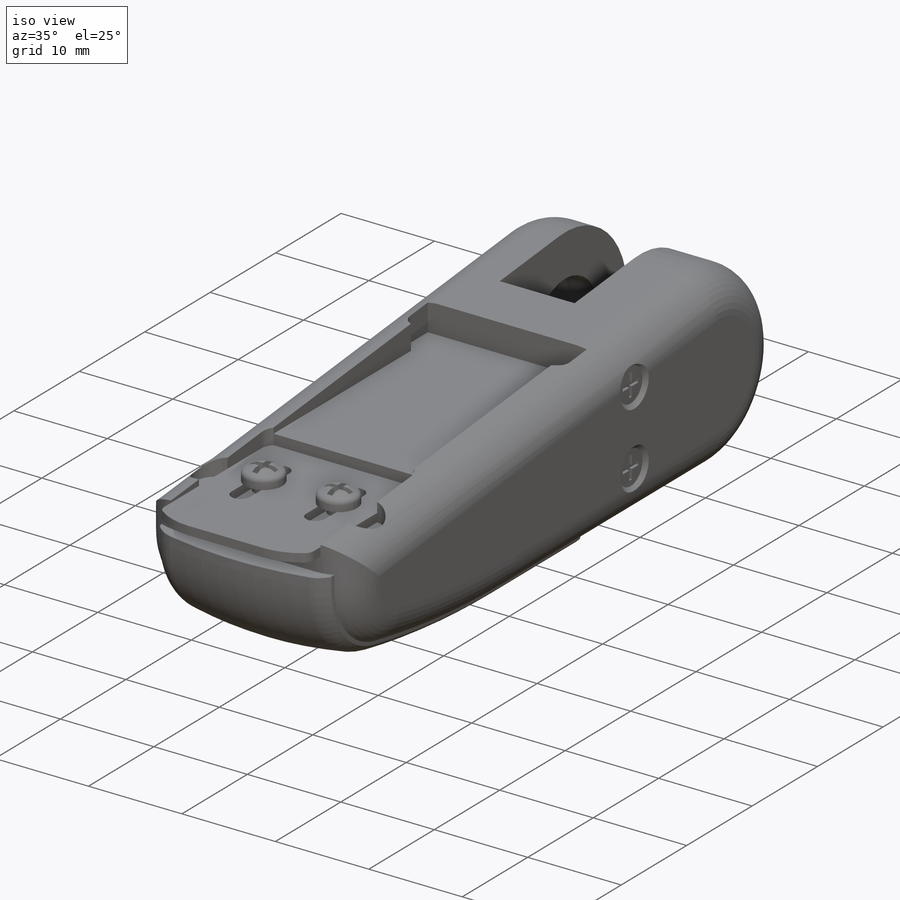
[diagram: iso view]
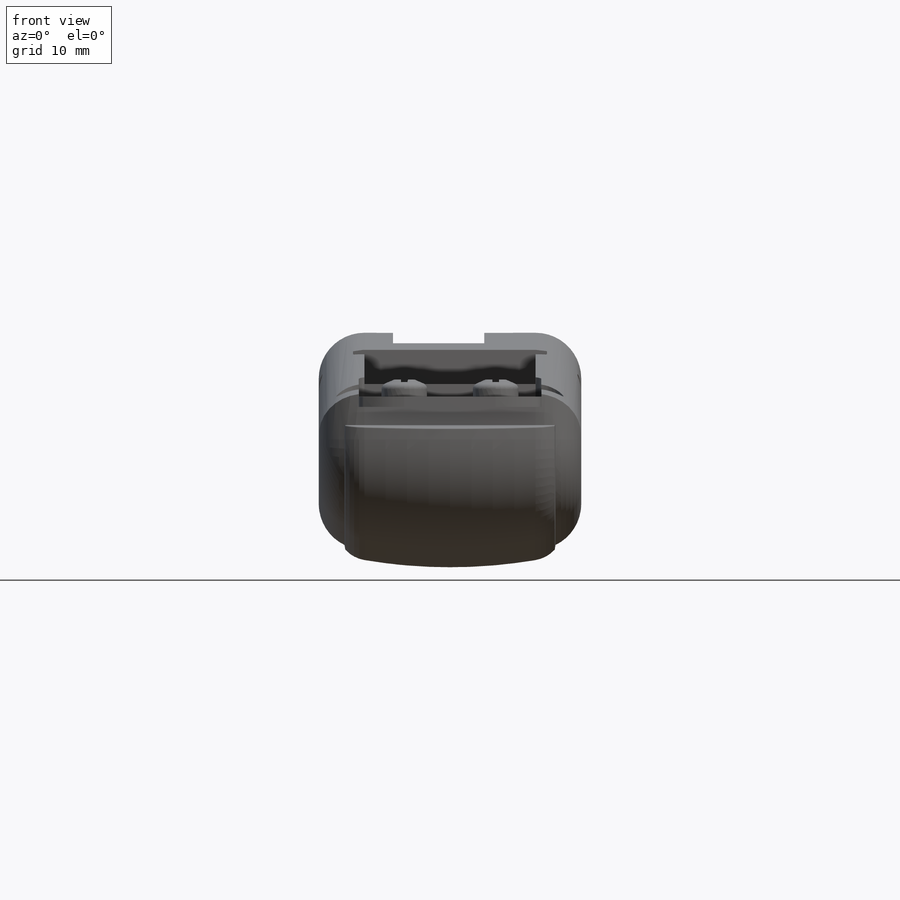
[diagram: front view]
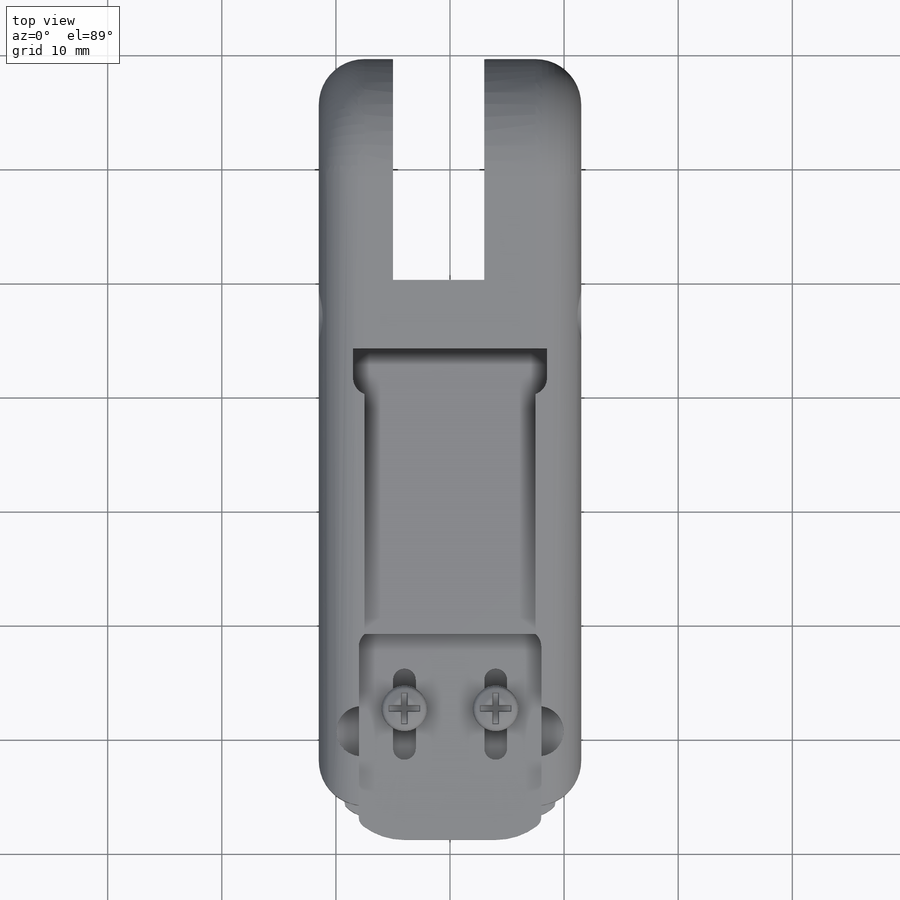
[diagram: top view]
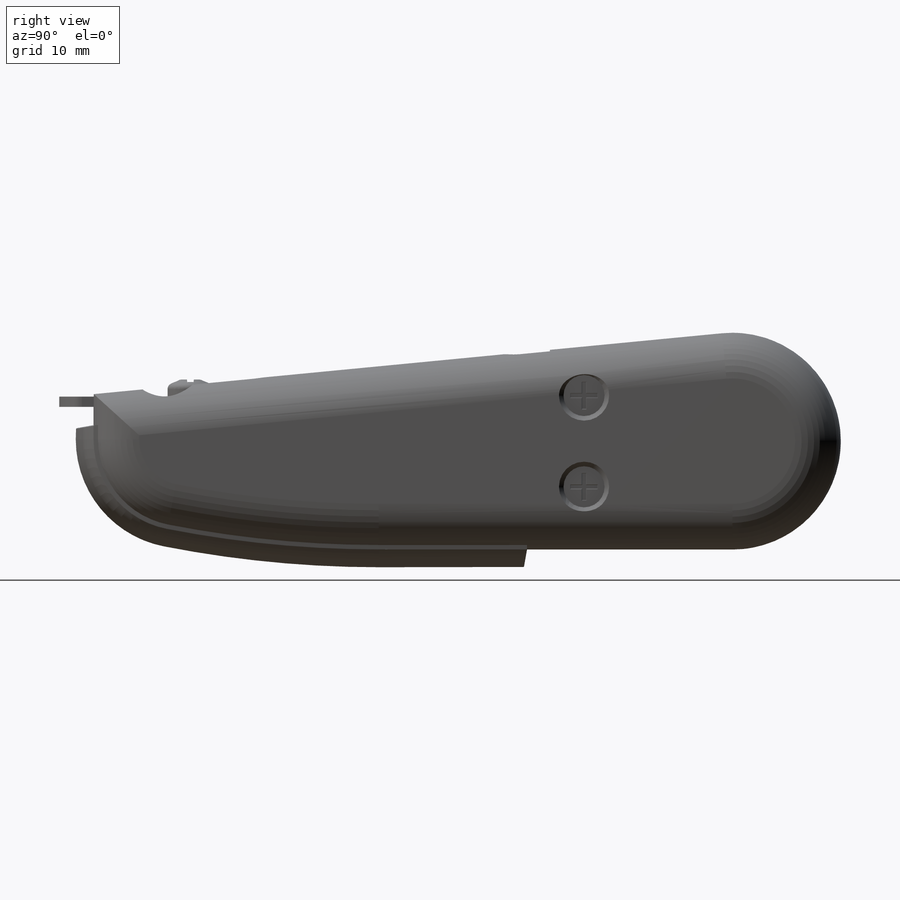
[diagram: right view]
SOLIDWORKS PART (.sldprt)
format: sldprt  version: not decoded by parser v0  size: 1,094,656 bytes
history: native  units: mm
features: sketch x13, cut_extrude x6, extrude x5, fillet x3, material x1, sweep x1, chamfer x1, mirror x1 (+11 scaffold rows collapsed)
feature tree (42):
  scaffold x11  (default folders/planes/origin — collapsed)
  material  "Material <not specified>"
  sketch  "Sketch1"  dims[c1.D1=9.5mm c1.D3=8.0mm c1.D6=~30.426217mm c1.D2=13.5mm c1.D4=56.0mm c2.D2=~37.618982mm c3.D2=5.5deg c3.D5=4.0mm c3.D6=25.0mm]
  extrude  "Boss-Extrude1"  Depth=23mm
  fillet  "Fillet1"  Radius=4mm
  sketch  "Sketch2"  dims[D1=10.0mm]
  cut_extrude  "Cut-Extrude1"  Depth=8mm
  sketch  "Sketch3"  dims[D1=10.0mm]
  cut_extrude  "Cut-Extrude2"  Depth=5mm
  sketch  "Sketch4"  dims[c1.D2=2.75mm c1.D3=~1.532216mm c2.D3=10.0deg c2.D4=~0.494334mm c3.D4=10.0deg c3.D5=18.0mm c3.D1=2.0mm]
  extrude  "Boss-Extrude2"  Depth=18.5mm
  sketch  "Sketch5"
  sketch  "Sketch6"  dims[c1.D3=~0.677177mm c1.D4=45.0mm c1.D1=~0.820827mm c2.D1=10.0deg c2.D2=0.5mm c2.D3=1.75mm c3.D2=1.55mm c3.D5=3.0mm]
  sweep  "Cut-Sweep1"
  fillet  "Fillet2"  Radius=0.1mm
  sketch  "Sketch7"  dims[c1.D1=1.5mm c1.D3=1.5mm c1.D7=2.2mm c1.D11=1.5mm c1.D2=1.0mm c2.D3=6.0mm c2.D4=17.0mm c2.D5=4.0mm c2.D6=16.0mm c2.D8=6.5mm c2.D9=15.5mm c2.D10=21.0mm]
  cut_extrude  "Cut-Extrude3"  Depth=3mm
  sketch  "Sketch8"  dims[D2=6.0mm D4=1.0mm D7=1.0mm D10=2.1mm D1=8.0mm D3=8.0mm D5=3.0mm D6=4.0mm D8=6.0mm D9=8.0mm D11=2.0mm]
  extrude  "Boss-Extrude3"  Depth=0.9mm
  sketch  "Sketch9"
  extrude  "Boss-Extrude4"  Depth=2mm
  sketch  "Sketch10"  dims[D1=4.0mm]
  extrude  "Boss-Extrude5"  Depth=1.5mm
  chamfer  "Chamfer1"  Distance=0.5mm Angle=65deg
  fillet  "Fillet3"  Radius=0.5mm
  sketch  "Sketch11"  dims[D1=0.6mm D2=0.3mm D3=1.4mm D4=4.0]
  cut_extrude  "Cut-Extrude4"  Depth=1mm
  sketch  "Sketch12"  dims[D3=4.4mm D1=8.0mm D2=13.0mm]
  cut_extrude  "Cut-Extrude5"  Depth=0.4mm
  sketch  "Sketch13"  dims[D1=0.4mm D2=0.2mm D3=1.2mm D4=4.0]
  cut_extrude  "Cut-Extrude6"  Depth=0.3mm
  mirror  "Mirror1"
decode coverage: 26 of 30 modeling features carry decoded parameters
note: ~ marks probable driven/reference dimensions
note: suppression state not decoded; provenance and decode notes live in map.json
